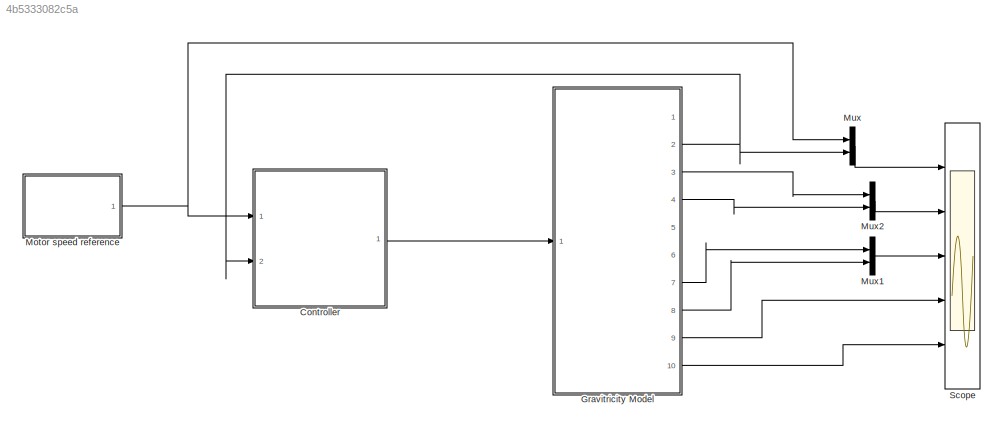
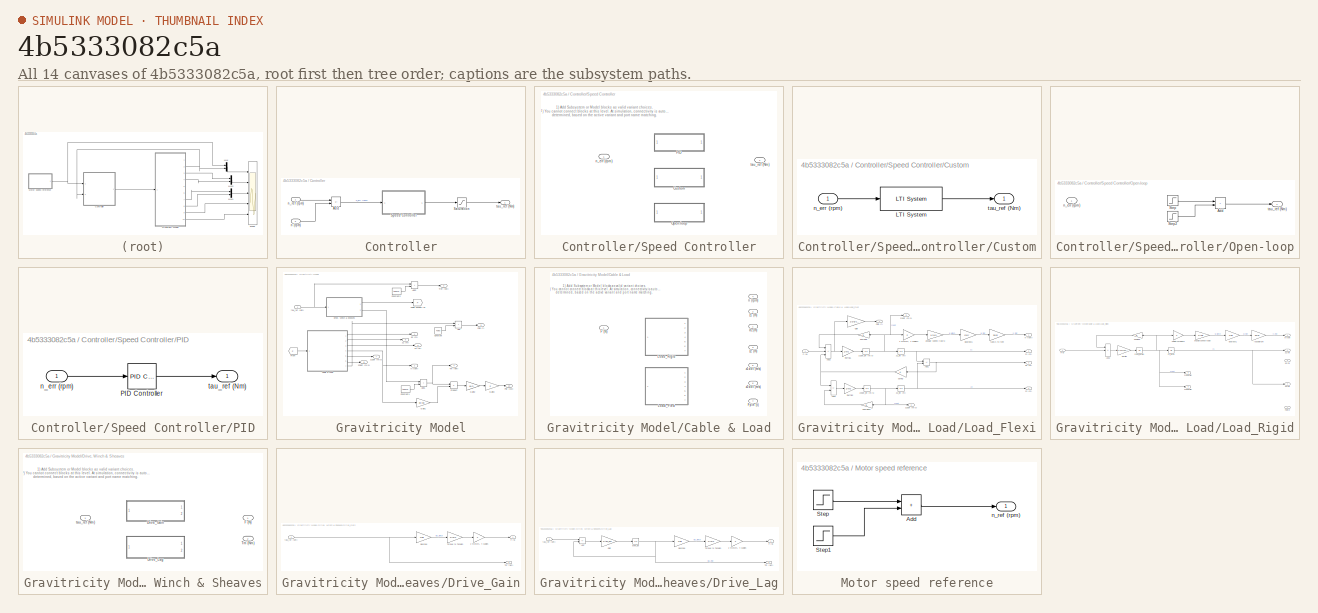
[diagram: thumbnail index - all 14 canvases of the model, root first then tree order]
MODEL slx_4b5333082c5a
KIND model
CONFIG AbsTol = auto
CONFIG EnableMultiTasking = off
CONFIG FixedStep = auto
CONFIG MaxStep = 0.001
CONFIG MinStep = auto
CONFIG RelTol = 1e-3
CONFIG SampleTimeConstraint = Unconstrained
CONFIG SolverName = VariableStepAuto
CONFIG StartTime = 0.0
CONFIG StopTime = 20
BLOCK [SubSystem] Controller
  Ports = [2, 1]
  RequestExecContextInheritance = off
BLOCK [Sum] Controller/Add
  IconShape = rectangular
  Inputs = +-
  Ports = [2, 1]
BLOCK [Saturate] Controller/Saturation
  LowerLimit = -tau_max
  UpperLimit = tau_max
BLOCK [SubSystem] Controller/Speed Controller
  LabelModeActiveChoice = Speed_Ctrl_OL
  Ports = [1, 1]
  RequestExecContextInheritance = off
  Variant = on
  VariantControlMode = label
BLOCK [SubSystem] Controller/Speed Controller/Custom
  Ports = [1, 1]
  RequestExecContextInheritance = off
  VariantControl = Speed_Ctrl_Custom
BLOCK [Reference] Controller/Speed Controller/Custom/LTI System  REF=cstblocks/LTI System
  Ports = [1, 1]
  SourceBlock = cstblocks/LTI System
  SourceProductBaseCode = CT
  SourceType = LTI Block
BLOCK [Inport] Controller/Speed Controller/Custom/n_err (rpm)
BLOCK [Outport] Controller/Speed Controller/Custom/tau_ref (Nm)
BLOCK [SubSystem] Controller/Speed Controller/Open-loop
  Ports = [1, 1]
  RequestExecContextInheritance = off
  VariantControl = Speed_Ctrl_OL
BLOCK [Sum] Controller/Speed Controller/Open-loop/Add
  IconShape = rectangular
  Ports = [2, 1]
BLOCK [Step] Controller/Speed Controller/Open-loop/Step
  After = 0.5*tau_m
  SampleTime = 0
  Time = 5
BLOCK [Step] Controller/Speed Controller/Open-loop/Step2
  After = -0.5*tau_m
  SampleTime = 0
  Time = 5.2
BLOCK [Inport] Controller/Speed Controller/Open-loop/n_err (rpm)
BLOCK [Outport] Controller/Speed Controller/Open-loop/tau_ref (Nm)
BLOCK [SubSystem] Controller/Speed Controller/PID
  Ports = [1, 1]
  RequestExecContextInheritance = off
  VariantControl = Speed_Ctrl_PID
BLOCK [Reference] Controller/Speed Controller/PID/PID Controller  REF=pid_lib/PID Controller
  Ports = [1, 1]
  SourceBlock = pid_lib/PID Controller
  SourceProductBaseCode = SL
  SourceType = PID 1dof
BLOCK [Inport] Controller/Speed Controller/PID/n_err (rpm)
BLOCK [Outport] Controller/Speed Controller/PID/tau_ref (Nm)
BLOCK [Inport] Controller/Speed Controller/n_err (rpm)
BLOCK [Outport] Controller/Speed Controller/tau_ref (Nm)
BLOCK [Inport] Controller/n (rpm)
  Port = 2
BLOCK [Inport] Controller/n_ref (rpm)
BLOCK [Outport] Controller/tau_ref (Nm)
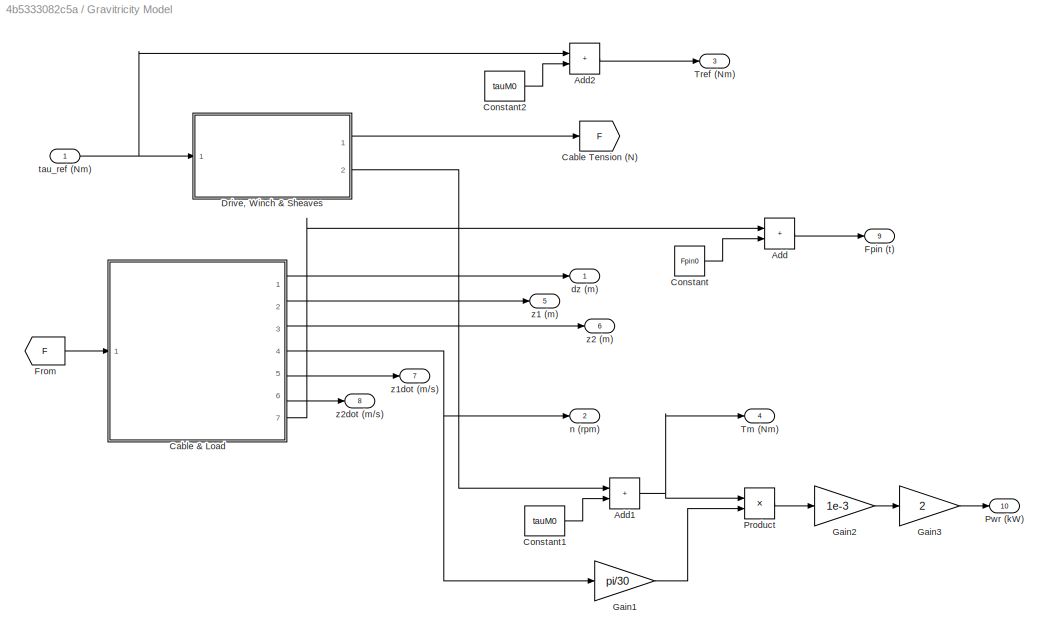
BLOCK [SubSystem] Gravitricity Model
  Ports = [1, 10]
  RequestExecContextInheritance = off
BLOCK [Sum] Gravitricity Model/Add
  IconShape = rectangular
  Ports = [2, 1]
BLOCK [Sum] Gravitricity Model/Add1
  IconShape = rectangular
  Ports = [2, 1]
BLOCK [Sum] Gravitricity Model/Add2
  IconShape = rectangular
  Ports = [2, 1]
BLOCK [SubSystem] Gravitricity Model/Cable & Load
  LabelModeActiveChoice = Load_2
  Ports = [1, 7]
  RequestExecContextInheritance = off
  Variant = on
  VariantControlMode = label
BLOCK [Inport] Gravitricity Model/Cable & Load/F (N)
BLOCK [Outport] Gravitricity Model/Cable & Load/Fpin (t)
  Port = 7
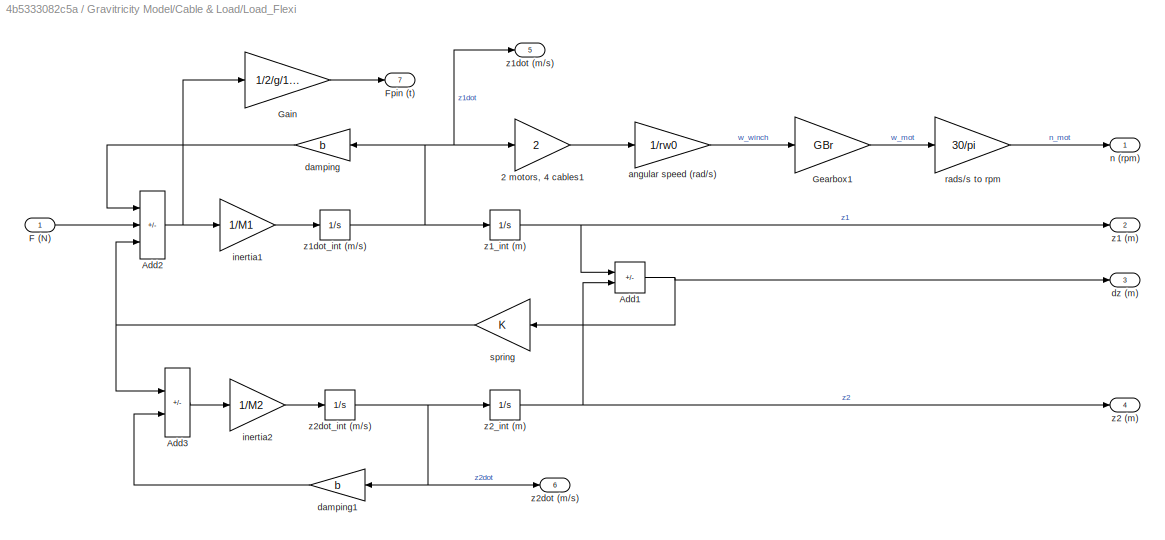
BLOCK [SubSystem] Gravitricity Model/Cable & Load/Load_Flexi
  Ports = [1, 7]
  RequestExecContextInheritance = off
  VariantControl = Load_2
BLOCK [Gain] Gravitricity Model/Cable & Load/Load_Flexi/2 motors, 4 cables1
  Gain = 2
BLOCK [Sum] Gravitricity Model/Cable & Load/Load_Flexi/Add1
  IconShape = rectangular
  Inputs = +-
  Ports = [2, 1]
BLOCK [Sum] Gravitricity Model/Cable & Load/Load_Flexi/Add2
  IconShape = rectangular
  Inputs = -+-
  Ports = [3, 1]
BLOCK [Sum] Gravitricity Model/Cable & Load/Load_Flexi/Add3
  IconShape = rectangular
  Inputs = +-
  Ports = [2, 1]
BLOCK [Inport] Gravitricity Model/Cable & Load/Load_Flexi/F (N)
BLOCK [Outport] Gravitricity Model/Cable & Load/Load_Flexi/Fpin (t)
  Port = 7
BLOCK [Gain] Gravitricity Model/Cable & Load/Load_Flexi/Gain
  Gain = 1/2/g/1000
BLOCK [Gain] Gravitricity Model/Cable & Load/Load_Flexi/Gearbox1
  Gain = GBr
BLOCK [Gain] Gravitricity Model/Cable & Load/Load_Flexi/angular speed (rad//s)
  Gain = 1/rw0
BLOCK [Gain] Gravitricity Model/Cable & Load/Load_Flexi/damping
  Gain = b
BLOCK [Gain] Gravitricity Model/Cable & Load/Load_Flexi/damping1
  Gain = b
BLOCK [Outport] Gravitricity Model/Cable & Load/Load_Flexi/dz (m)
  Port = 3
BLOCK [Gain] Gravitricity Model/Cable & Load/Load_Flexi/inertia1
  Gain = 1/M1
BLOCK [Gain] Gravitricity Model/Cable & Load/Load_Flexi/inertia2
  Gain = 1/M2
BLOCK [Outport] Gravitricity Model/Cable & Load/Load_Flexi/n (rpm)
BLOCK [Gain] Gravitricity Model/Cable & Load/Load_Flexi/rads//s to rpm
  Gain = 30/pi
BLOCK [Gain] Gravitricity Model/Cable & Load/Load_Flexi/spring
  Gain = K
BLOCK [Outport] Gravitricity Model/Cable & Load/Load_Flexi/z1 (m)
  Port = 2
BLOCK [Integrator] Gravitricity Model/Cable & Load/Load_Flexi/z1_int (m)
  Ports = [1, 1]
BLOCK [Outport] Gravitricity Model/Cable & Load/Load_Flexi/z1dot (m//s)
  Port = 5
BLOCK [Integrator] Gravitricity Model/Cable & Load/Load_Flexi/z1dot_int (m//s)
  Ports = [1, 1]
BLOCK [Outport] Gravitricity Model/Cable & Load/Load_Flexi/z2 (m)
  Port = 4
BLOCK [Integrator] Gravitricity Model/Cable & Load/Load_Flexi/z2_int (m)
  Ports = [1, 1]
BLOCK [Outport] Gravitricity Model/Cable & Load/Load_Flexi/z2dot (m//s)
  Port = 6
BLOCK [Integrator] Gravitricity Model/Cable & Load/Load_Flexi/z2dot_int (m//s)
  Ports = [1, 1]
BLOCK [SubSystem] Gravitricity Model/Cable & Load/Load_Rigid
  Ports = [1, 7]
  RequestExecContextInheritance = off
  VariantControl = Load_1
BLOCK [Gain] Gravitricity Model/Cable & Load/Load_Rigid/2 motors, 4 cables1
  Gain = 4
BLOCK [Sum] Gravitricity Model/Cable & Load/Load_Rigid/Add2
  IconShape = rectangular
  Inputs = -+-
  Ports = [3, 1]
BLOCK [Inport] Gravitricity Model/Cable & Load/Load_Rigid/F (N)
BLOCK [Outport] Gravitricity Model/Cable & Load/Load_Rigid/Fpin (t)
  Port = 7
BLOCK [Gain] Gravitricity Model/Cable & Load/Load_Rigid/Gearbox1
  Gain = GBr
BLOCK [Gain] Gravitricity Model/Cable & Load/Load_Rigid/angular speed (rad//s)
  Gain = 1/rw0
BLOCK [Gain] Gravitricity Model/Cable & Load/Load_Rigid/damping
  Gain = b
BLOCK [Outport] Gravitricity Model/Cable & Load/Load_Rigid/dz (m)
  Port = 3
BLOCK [Gain] Gravitricity Model/Cable & Load/Load_Rigid/inertia1
  Gain = 1/(M1+M2)
BLOCK [Outport] Gravitricity Model/Cable & Load/Load_Rigid/n (rpm)
BLOCK [Gain] Gravitricity Model/Cable & Load/Load_Rigid/rads//s to rpm
  Gain = 30/pi
BLOCK [Outport] Gravitricity Model/Cable & Load/Load_Rigid/z1 (m)
  Port = 2
BLOCK [Integrator] Gravitricity Model/Cable & Load/Load_Rigid/z1_int (m)
  Ports = [1, 1]
BLOCK [Outport] Gravitricity Model/Cable & Load/Load_Rigid/z1dot (m//s)
  Port = 5
BLOCK [Integrator] Gravitricity Model/Cable & Load/Load_Rigid/z1dot_int (m//s)
  Ports = [1, 1]
BLOCK [Outport] Gravitricity Model/Cable & Load/Load_Rigid/z2 (m)
  Port = 4
BLOCK [Outport] Gravitricity Model/Cable & Load/Load_Rigid/z2dot (m//s)
  Port = 6
BLOCK [Outport] Gravitricity Model/Cable & Load/dz (m)
BLOCK [Outport] Gravitricity Model/Cable & Load/n (rpm)
  Port = 4
BLOCK [Outport] Gravitricity Model/Cable & Load/z1 (m)
  Port = 2
BLOCK [Outport] Gravitricity Model/Cable & Load/z1dot (m//s)
  Port = 5
BLOCK [Outport] Gravitricity Model/Cable & Load/z2 (m)
  Port = 3
BLOCK [Outport] Gravitricity Model/Cable & Load/z2dot (m//s)
  Port = 6
BLOCK [Goto] Gravitricity Model/Cable Tension (N)
  GotoTag = F
BLOCK [Constant] Gravitricity Model/Constant
  Value = Fpin0
BLOCK [Constant] Gravitricity Model/Constant1
  Value = tauM0
BLOCK [Constant] Gravitricity Model/Constant2
  Value = tauM0
BLOCK [SubSystem] Gravitricity Model/Drive, Winch & Sheaves
  LabelModeActiveChoice = Drive_2
  Ports = [1, 2]
  RequestExecContextInheritance = off
  Variant = on
  VariantControlMode = label
BLOCK [SubSystem] Gravitricity Model/Drive, Winch & Sheaves/Drive_Gain
  Ports = [1, 2]
  RequestExecContextInheritance = off
  VariantControl = Drive_1
BLOCK [Gain] Gravitricity Model/Drive, Winch & Sheaves/Drive_Gain/2 motors, 4 cables
  Gain = 4
BLOCK [Outport] Gravitricity Model/Drive, Winch & Sheaves/Drive_Gain/F (N)
BLOCK [Gain] Gravitricity Model/Drive, Winch & Sheaves/Drive_Gain/Gearbox
  Gain = GBr
BLOCK [Outport] Gravitricity Model/Drive, Winch & Sheaves/Drive_Gain/Tm (Nm)
  Port = 2
BLOCK [Gain] Gravitricity Model/Drive, Winch & Sheaves/Drive_Gain/Torque to Tension
  Gain = 1/rw0
BLOCK [Inport] Gravitricity Model/Drive, Winch & Sheaves/Drive_Gain/tau_ref (Nm)
BLOCK [SubSystem] Gravitricity Model/Drive, Winch & Sheaves/Drive_Lag
  Ports = [1, 2]
  RequestExecContextInheritance = off
  VariantControl = Drive_2
BLOCK [Gain] Gravitricity Model/Drive, Winch & Sheaves/Drive_Lag/2 motors, 4 cables
  Gain = 4
BLOCK [Sum] Gravitricity Model/Drive, Winch & Sheaves/Drive_Lag/Add
  IconShape = rectangular
  Inputs = +-
  Ports = [2, 1]
BLOCK [Outport] Gravitricity Model/Drive, Winch & Sheaves/Drive_Lag/F (N)
BLOCK [Gain] Gravitricity Model/Drive, Winch & Sheaves/Drive_Lag/Gain
  Gain = 1/tau_em
BLOCK [Gain] Gravitricity Model/Drive, Winch & Sheaves/Drive_Lag/Gearbox
  Gain = GBr
BLOCK [Outport] Gravitricity Model/Drive, Winch & Sheaves/Drive_Lag/Tm (Nm)
  Port = 2
BLOCK [Gain] Gravitricity Model/Drive, Winch & Sheaves/Drive_Lag/Torque to Tension
  Gain = 1/rw0
BLOCK [Integrator] Gravitricity Model/Drive, Winch & Sheaves/Drive_Lag/drive_int
  Ports = [1, 1]
BLOCK [Inport] Gravitricity Model/Drive, Winch & Sheaves/Drive_Lag/tau_ref (Nm)
BLOCK [Outport] Gravitricity Model/Drive, Winch & Sheaves/F (N)
BLOCK [Outport] Gravitricity Model/Drive, Winch & Sheaves/Tm (Nm)
  Port = 2
BLOCK [Inport] Gravitricity Model/Drive, Winch & Sheaves/tau_ref (Nm)
BLOCK [Outport] Gravitricity Model/Fpin (t)
  Port = 9
BLOCK [From] Gravitricity Model/From
  GotoTag = F
BLOCK [Gain] Gravitricity Model/Gain1
  Gain = pi/30
BLOCK [Gain] Gravitricity Model/Gain2
  Gain = 1e-3
BLOCK [Gain] Gravitricity Model/Gain3
  Gain = 2
BLOCK [Product] Gravitricity Model/Product
  Ports = [2, 1]
BLOCK [Outport] Gravitricity Model/Pwr (kW)
  Port = 10
BLOCK [Outport] Gravitricity Model/Tm (Nm)
  Port = 4
BLOCK [Outport] Gravitricity Model/Tref (Nm)
  Port = 3
BLOCK [Outport] Gravitricity Model/dz (m)
BLOCK [Outport] Gravitricity Model/n (rpm)
  Port = 2
BLOCK [Inport] Gravitricity Model/tau_ref (Nm)
BLOCK [Outport] Gravitricity Model/z1 (m)
  Port = 5
BLOCK [Outport] Gravitricity Model/z1dot (m//s)
  Port = 7
BLOCK [Outport] Gravitricity Model/z2 (m)
  Port = 6
BLOCK [Outport] Gravitricity Model/z2dot (m//s)
  Port = 8
BLOCK [SubSystem] Motor speed reference
  Ports = [0, 1]
  RequestExecContextInheritance = off
BLOCK [Sum] Motor speed reference/Add
  IconShape = rectangular
  Ports = [2, 1]
BLOCK [Step] Motor speed reference/Step
  After = 1000
  SampleTime = 0
BLOCK [Step] Motor speed reference/Step1
  After = -1000
  SampleTime = 0
  Time = 10
BLOCK [Outport] Motor speed reference/n_ref (rpm)
BLOCK [Mux] Mux
  DisplayOption = bar
  Inputs = 2
  Ports = [2, 1]
BLOCK [Mux] Mux1
  DisplayOption = bar
  Inputs = 2
  Ports = [2, 1]
BLOCK [Mux] Mux2
  DisplayOption = bar
  Inputs = 2
  Ports = [2, 1]
BLOCK [Scope] Scope
  Floating = off
  NumInputPorts = 5
  Ports = [5]
  ScopeSpecificationString = Simulink.scopes.TimeScopeBlockCfg('CurrentConfiguration', extmgr.ConfigurationSet(extmgr.Configuration('Core','General UI',true),extmgr.Configuration('Core','Source UI',true),extmgr.Configuration('Sources','WiredSimulink',true,'DataLogging',true,'DataLoggingSaveFormat','StructureWithTime'),extmgr.Configuration('Visuals','Time Domain',true,'SerializedDisplays',{struct('MinYLimReal','-481.22478','Ma...<+4487ch>
ANNOTATION Controller/Speed Controller: 1) Add Subsystem or Model blocks as valid variant choices. 2) You cannot connect blocks at this level. At simulation, connectivity is automatically determined, based on the active variant and port name matching.
ANNOTATION Gravitricity Model/Cable & Load: 1) Add Subsystem or Model blocks as valid variant choices. 2) You cannot connect blocks at this level. At simulation, connectivity is automatically determined, based on the active variant and port name matching.
ANNOTATION Gravitricity Model/Drive, Winch & Sheaves: 1) Add Subsystem or Model blocks as valid variant choices. 2) You cannot connect blocks at this level. At simulation, connectivity is automatically determined, based on the active variant and port name matching.
LINE Controller/Add:1 -> Controller/Speed Controller:1
LINE Controller/Saturation:1 -> Controller/tau_ref (Nm):1
LINE Controller/Speed Controller/Custom/LTI System:1 -> Controller/Speed Controller/Custom/tau_ref (Nm):1
LINE Controller/Speed Controller/Custom/n_err (rpm):1 -> Controller/Speed Controller/Custom/LTI System:1
LINE Controller/Speed Controller/Open-loop/Add:1 -> Controller/Speed Controller/Open-loop/tau_ref (Nm):1
LINE Controller/Speed Controller/Open-loop/Step2:1 -> Controller/Speed Controller/Open-loop/Add:2
LINE Controller/Speed Controller/Open-loop/Step:1 -> Controller/Speed Controller/Open-loop/Add:1
LINE Controller/Speed Controller/PID/PID Controller:1 -> Controller/Speed Controller/PID/tau_ref (Nm):1
LINE Controller/Speed Controller/PID/n_err (rpm):1 -> Controller/Speed Controller/PID/PID Controller:1
LINE Controller/Speed Controller:1 -> Controller/Saturation:1
LINE Controller/n (rpm):1 -> Controller/Add:2
LINE Controller/n_ref (rpm):1 -> Controller/Add:1
LINE Controller:1 -> Gravitricity Model:1
NET Gravitricity Model/Add1:1 -> Gravitricity Model/Product:1, Gravitricity Model/Tm (Nm):1
LINE Gravitricity Model/Add2:1 -> Gravitricity Model/Tref (Nm):1
LINE Gravitricity Model/Add:1 -> Gravitricity Model/Fpin (t):1
LINE Gravitricity Model/Cable & Load/Load_Flexi/2 motors, 4 cables1:1 -> Gravitricity Model/Cable & Load/Load_Flexi/angular speed (rad//s):1
NET Gravitricity Model/Cable & Load/Load_Flexi/Add1:1 -> Gravitricity Model/Cable & Load/Load_Flexi/dz (m):1, Gravitricity Model/Cable & Load/Load_Flexi/spring:1
NET Gravitricity Model/Cable & Load/Load_Flexi/Add2:1 -> Gravitricity Model/Cable & Load/Load_Flexi/Gain:1, Gravitricity Model/Cable & Load/Load_Flexi/inertia1:1
LINE Gravitricity Model/Cable & Load/Load_Flexi/Add3:1 -> Gravitricity Model/Cable & Load/Load_Flexi/inertia2:1
LINE Gravitricity Model/Cable & Load/Load_Flexi/F (N):1 -> Gravitricity Model/Cable & Load/Load_Flexi/Add2:2
LINE Gravitricity Model/Cable & Load/Load_Flexi/Gain:1 -> Gravitricity Model/Cable & Load/Load_Flexi/Fpin (t):1
LINE Gravitricity Model/Cable & Load/Load_Flexi/Gearbox1:1 -> Gravitricity Model/Cable & Load/Load_Flexi/rads//s to rpm:1
LINE Gravitricity Model/Cable & Load/Load_Flexi/angular speed (rad//s):1 -> Gravitricity Model/Cable & Load/Load_Flexi/Gearbox1:1
LINE Gravitricity Model/Cable & Load/Load_Flexi/damping1:1 -> Gravitricity Model/Cable & Load/Load_Flexi/Add3:2
LINE Gravitricity Model/Cable & Load/Load_Flexi/damping:1 -> Gravitricity Model/Cable & Load/Load_Flexi/Add2:1
LINE Gravitricity Model/Cable & Load/Load_Flexi/inertia1:1 -> Gravitricity Model/Cable & Load/Load_Flexi/z1dot_int (m//s):1
LINE Gravitricity Model/Cable & Load/Load_Flexi/inertia2:1 -> Gravitricity Model/Cable & Load/Load_Flexi/z2dot_int (m//s):1
LINE Gravitricity Model/Cable & Load/Load_Flexi/rads//s to rpm:1 -> Gravitricity Model/Cable & Load/Load_Flexi/n (rpm):1
NET Gravitricity Model/Cable & Load/Load_Flexi/spring:1 -> Gravitricity Model/Cable & Load/Load_Flexi/Add2:3, Gravitricity Model/Cable & Load/Load_Flexi/Add3:1
NET Gravitricity Model/Cable & Load/Load_Flexi/z1_int (m):1 -> Gravitricity Model/Cable & Load/Load_Flexi/Add1:1, Gravitricity Model/Cable & Load/Load_Flexi/z1 (m):1
NET Gravitricity Model/Cable & Load/Load_Flexi/z1dot_int (m//s):1 -> Gravitricity Model/Cable & Load/Load_Flexi/2 motors, 4 cables1:1, Gravitricity Model/Cable & Load/Load_Flexi/damping:1, Gravitricity Model/Cable & Load/Load_Flexi/z1_int (m):1, Gravitricity Model/Cable & Load/Load_Flexi/z1dot (m//s):1
NET Gravitricity Model/Cable & Load/Load_Flexi/z2_int (m):1 -> Gravitricity Model/Cable & Load/Load_Flexi/Add1:2, Gravitricity Model/Cable & Load/Load_Flexi/z2 (m):1
NET Gravitricity Model/Cable & Load/Load_Flexi/z2dot_int (m//s):1 -> Gravitricity Model/Cable & Load/Load_Flexi/damping1:1, Gravitricity Model/Cable & Load/Load_Flexi/z2_int (m):1, Gravitricity Model/Cable & Load/Load_Flexi/z2dot (m//s):1
LINE Gravitricity Model/Cable & Load/Load_Rigid/2 motors, 4 cables1:1 -> Gravitricity Model/Cable & Load/Load_Rigid/angular speed (rad//s):1
LINE Gravitricity Model/Cable & Load/Load_Rigid/Add2:1 -> Gravitricity Model/Cable & Load/Load_Rigid/inertia1:1
LINE Gravitricity Model/Cable & Load/Load_Rigid/F (N):1 -> Gravitricity Model/Cable & Load/Load_Rigid/Add2:2
LINE Gravitricity Model/Cable & Load/Load_Rigid/Gearbox1:1 -> Gravitricity Model/Cable & Load/Load_Rigid/rads//s to rpm:1
LINE Gravitricity Model/Cable & Load/Load_Rigid/angular speed (rad//s):1 -> Gravitricity Model/Cable & Load/Load_Rigid/Gearbox1:1
LINE Gravitricity Model/Cable & Load/Load_Rigid/damping:1 -> Gravitricity Model/Cable & Load/Load_Rigid/Add2:1
LINE Gravitricity Model/Cable & Load/Load_Rigid/inertia1:1 -> Gravitricity Model/Cable & Load/Load_Rigid/z1dot_int (m//s):1
LINE Gravitricity Model/Cable & Load/Load_Rigid/rads//s to rpm:1 -> Gravitricity Model/Cable & Load/Load_Rigid/n (rpm):1
NET Gravitricity Model/Cable & Load/Load_Rigid/z1_int (m):1 -> Gravitricity Model/Cable & Load/Load_Rigid/z1 (m):1, Gravitricity Model/Cable & Load/Load_Rigid/z2 (m):1
NET Gravitricity Model/Cable & Load/Load_Rigid/z1dot_int (m//s):1 -> Gravitricity Model/Cable & Load/Load_Rigid/2 motors, 4 cables1:1, Gravitricity Model/Cable & Load/Load_Rigid/damping:1, Gravitricity Model/Cable & Load/Load_Rigid/z1_int (m):1, Gravitricity Model/Cable & Load/Load_Rigid/z1dot (m//s):1, Gravitricity Model/Cable & Load/Load_Rigid/z2dot (m//s):1
LINE Gravitricity Model/Cable & Load:1 -> Gravitricity Model/dz (m):1
LINE Gravitricity Model/Cable & Load:2 -> Gravitricity Model/z1 (m):1
LINE Gravitricity Model/Cable & Load:3 -> Gravitricity Model/z2 (m):1
NET Gravitricity Model/Cable & Load:4 -> Gravitricity Model/Gain1:1, Gravitricity Model/n (rpm):1
LINE Gravitricity Model/Cable & Load:5 -> Gravitricity Model/z1dot (m//s):1
LINE Gravitricity Model/Cable & Load:6 -> Gravitricity Model/z2dot (m//s):1
LINE Gravitricity Model/Cable & Load:7 -> Gravitricity Model/Add:1
LINE Gravitricity Model/Constant1:1 -> Gravitricity Model/Add1:2
LINE Gravitricity Model/Constant2:1 -> Gravitricity Model/Add2:2
LINE Gravitricity Model/Constant:1 -> Gravitricity Model/Add:2
LINE Gravitricity Model/Drive, Winch & Sheaves/Drive_Gain/2 motors, 4 cables:1 -> Gravitricity Model/Drive, Winch & Sheaves/Drive_Gain/F (N):1
LINE Gravitricity Model/Drive, Winch & Sheaves/Drive_Gain/Gearbox:1 -> Gravitricity Model/Drive, Winch & Sheaves/Drive_Gain/Torque to Tension:1
LINE Gravitricity Model/Drive, Winch & Sheaves/Drive_Gain/Torque to Tension:1 -> Gravitricity Model/Drive, Winch & Sheaves/Drive_Gain/2 motors, 4 cables:1
NET Gravitricity Model/Drive, Winch & Sheaves/Drive_Gain/tau_ref (Nm):1 -> Gravitricity Model/Drive, Winch & Sheaves/Drive_Gain/Gearbox:1, Gravitricity Model/Drive, Winch & Sheaves/Drive_Gain/Tm (Nm):1
LINE Gravitricity Model/Drive, Winch & Sheaves/Drive_Lag/2 motors, 4 cables:1 -> Gravitricity Model/Drive, Winch & Sheaves/Drive_Lag/F (N):1
LINE Gravitricity Model/Drive, Winch & Sheaves/Drive_Lag/Add:1 -> Gravitricity Model/Drive, Winch & Sheaves/Drive_Lag/Gain:1
LINE Gravitricity Model/Drive, Winch & Sheaves/Drive_Lag/Gain:1 -> Gravitricity Model/Drive, Winch & Sheaves/Drive_Lag/drive_int:1
LINE Gravitricity Model/Drive, Winch & Sheaves/Drive_Lag/Gearbox:1 -> Gravitricity Model/Drive, Winch & Sheaves/Drive_Lag/Torque to Tension:1
LINE Gravitricity Model/Drive, Winch & Sheaves/Drive_Lag/Torque to Tension:1 -> Gravitricity Model/Drive, Winch & Sheaves/Drive_Lag/2 motors, 4 cables:1
NET Gravitricity Model/Drive, Winch & Sheaves/Drive_Lag/drive_int:1 -> Gravitricity Model/Drive, Winch & Sheaves/Drive_Lag/Add:2, Gravitricity Model/Drive, Winch & Sheaves/Drive_Lag/Gearbox:1, Gravitricity Model/Drive, Winch & Sheaves/Drive_Lag/Tm (Nm):1
LINE Gravitricity Model/Drive, Winch & Sheaves/Drive_Lag/tau_ref (Nm):1 -> Gravitricity Model/Drive, Winch & Sheaves/Drive_Lag/Add:1
LINE Gravitricity Model/Drive, Winch & Sheaves:1 -> Gravitricity Model/Cable Tension (N):1
LINE Gravitricity Model/Drive, Winch & Sheaves:2 -> Gravitricity Model/Add1:1
LINE Gravitricity Model/From:1 -> Gravitricity Model/Cable & Load:1
LINE Gravitricity Model/Gain1:1 -> Gravitricity Model/Product:2
LINE Gravitricity Model/Gain2:1 -> Gravitricity Model/Gain3:1
LINE Gravitricity Model/Gain3:1 -> Gravitricity Model/Pwr (kW):1
LINE Gravitricity Model/Product:1 -> Gravitricity Model/Gain2:1
NET Gravitricity Model/tau_ref (Nm):1 -> Gravitricity Model/Add2:1, Gravitricity Model/Drive, Winch & Sheaves:1
LINE Gravitricity Model:10 -> Scope:5
NET Gravitricity Model:2 -> Controller:2, Mux:2
LINE Gravitricity Model:3 -> Mux2:1
LINE Gravitricity Model:4 -> Mux2:2
LINE Gravitricity Model:7 -> Mux1:1
LINE Gravitricity Model:8 -> Mux1:2
LINE Gravitricity Model:9 -> Scope:4
LINE Motor speed reference/Add:1 -> Motor speed reference/n_ref (rpm):1
LINE Motor speed reference/Step1:1 -> Motor speed reference/Add:2
LINE Motor speed reference/Step:1 -> Motor speed reference/Add:1
NET Motor speed reference:1 -> Controller:1, Mux:1
LINE Mux1:1 -> Scope:3
LINE Mux2:1 -> Scope:2
LINE Mux:1 -> Scope:1
note: NET lines group one-source signal fan-out (src -> all destinations, sorted); 1:1 wires keep LINE
